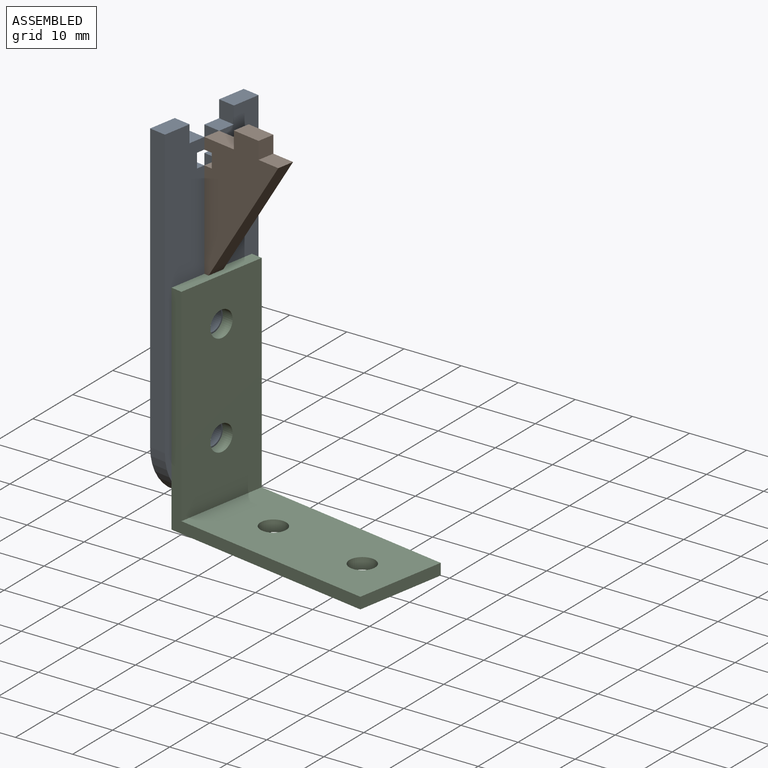
[diagram: assembled view]
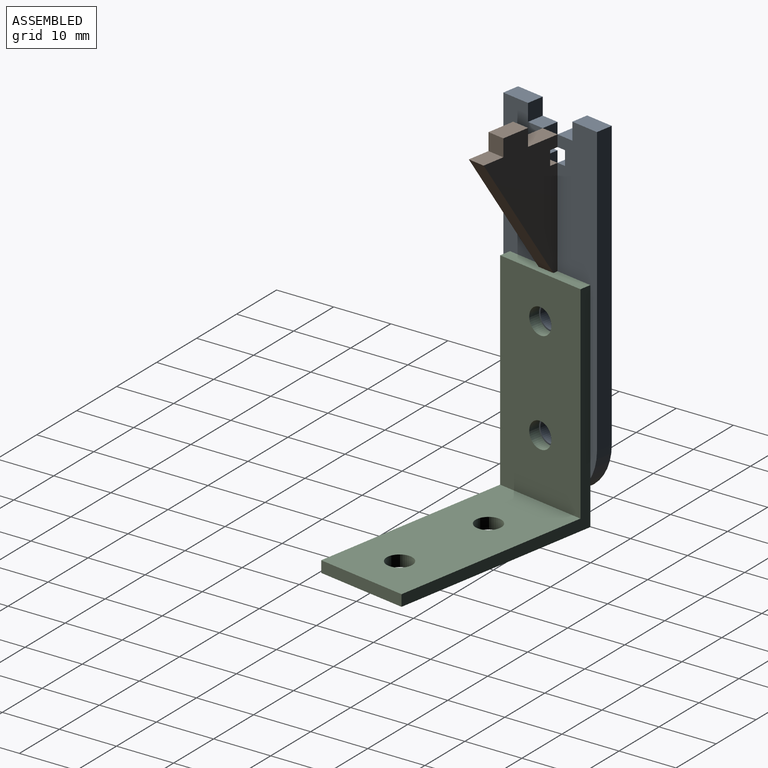
[diagram: assembled view, second angle]
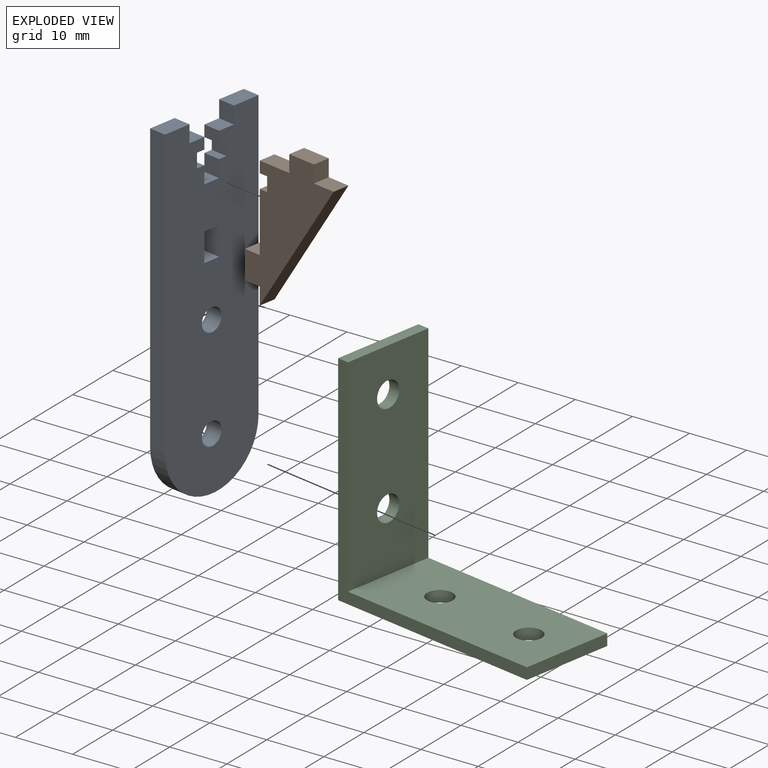
[diagram: exploded view]
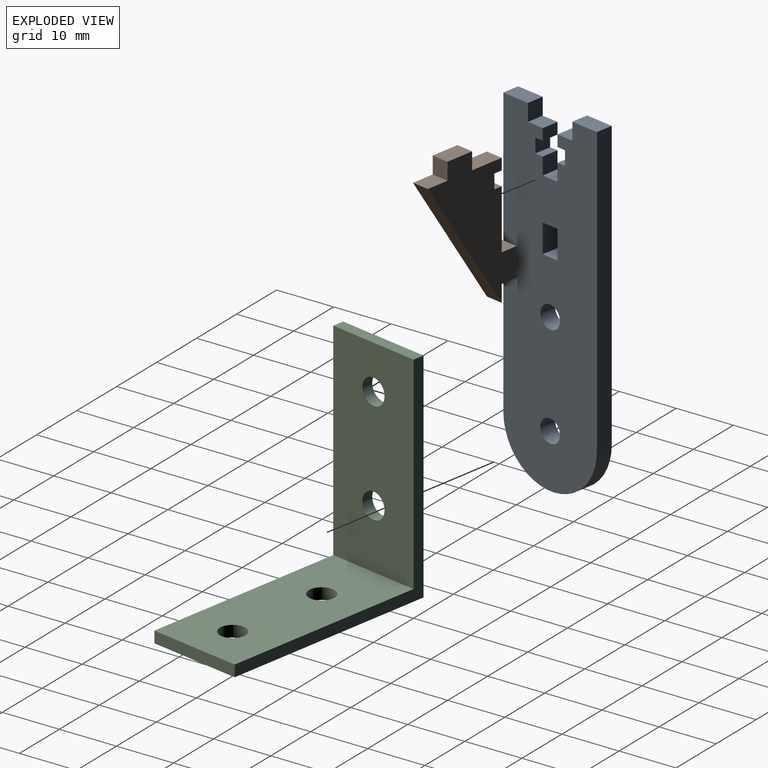
[diagram: exploded view, second angle]
ASSEMBLY  parts=3 mates=2
PART A: 28 faces, bbox 3x19x60 mm
  f0: plane 5x3mm, normal (0,1,0), area 15mm2, adj f1,f23,f26,f27
  f1: plane 3x3mm, normal (0,0,-1), area 9mm2, adj f0,f2,f26,f27
  f2: plane 5x3mm, normal (0,-1,0), area 15mm2, adj f1,f23,f26,f27
  f3: plane 5x3mm, normal (0,0,1), area 15mm2, adj f4,f24,f26,f27
  f4: plane 50.45x3mm, normal (0,-1,0), area 151.3mm2, adj f3,f5,f26,f27
  f5: cylinder r=9.5mm len=19mm, axis (-1,0,0), area 89.5mm2, adj f4,f6,f26,f27
  f6: plane 50.45x3mm, normal (0,1,0), area 151.3mm2, adj f5,f7,f26,f27
  f7: plane 5x3mm, normal (0,0,1), area 15mm2, adj f6,f8,f26,f27
  f8: plane 3x3mm, normal (0,-1,0), area 9mm2, adj f7,f9,f26,f27
  f9: plane 3x3mm, normal (0,0,1), area 9mm2, adj f8,f10,f26,f27
  f10: plane 3x2mm, normal (0,-1,0), area 6mm2, adj f9,f11,f26,f27
  f11: plane 3x1.5mm, normal (0,0,-1), area 4.5mm2, adj f10,f12,f26,f27
  f12: plane 3x2.5mm, normal (0,-1,0), area 7.5mm2, adj f11,f13,f26,f27
  f13: plane 3x1.5mm, normal (0,0,1), area 4.5mm2, adj f12,f14,f26,f27
  f14: plane 3x3mm, normal (0,-1,0), area 9mm2, adj f13,f15,f26,f27
  f15: plane 3x3mm, normal (0,0,1), area 9mm2, adj f14,f16,f26,f27
  f16: plane 3x3mm, normal (0,1,0), area 9mm2, adj f15,f17,f26,f27
  f17: plane 3x1.5mm, normal (0,0,1), area 4.5mm2, adj f16,f18,f26,f27
  f18: plane 3x2.5mm, normal (0,1,0), area 7.5mm2, adj f17,f19,f26,f27
  f19: plane 3x1.5mm, normal (0,0,-1), area 4.5mm2, adj f18,f20,f26,f27
  f20: plane 3x2mm, normal (0,1,0), area 6mm2, adj f19,f21,f26,f27
  f21: plane 3x3mm, normal (0,0,1), area 9mm2, adj f20,f24,f26,f27
  f22: cylinder r=2mm len=4mm, axis (-1,0,0), area 37.7mm2, adj f26,f27
  f23: plane 3x3mm, normal (0,0,1), area 9mm2, adj f0,f2,f26,f27
  f24: plane 3x3mm, normal (0,1,0), area 9mm2, adj f3,f21,f26,f27
  f25: cylinder r=2mm len=4mm, axis (-1,0,0), area 37.7mm2, adj f26,f27
  f26: plane 59.95x19mm, normal (1,0,0), area 1003.2mm2, adj f0,f1,f2,f3,f4,f5,f6,f7
  f27: plane 59.95x19mm, normal (-1,0,0), area 1003.2mm2, adj f0,f1,f2,f3,f4,f5,f6,f7
PART B: 17 faces, bbox 3x18x26 mm
  f0: plane 3x3mm, normal (0,-1,0), area 9mm2, adj f1,f14,f15,f16
  f1: plane 22.96x15mm, normal (0,0.84,-0.55), area 82.3mm2, adj f0,f2,f15,f16
  f2: plane 4x3mm, normal (0,0,1), area 12mm2, adj f1,f3,f15,f16
  f3: plane 3x3mm, normal (0,1,0), area 9mm2, adj f2,f4,f15,f16
  f4: plane 5x3mm, normal (0,0,1), area 15mm2, adj f3,f5,f15,f16
  f5: plane 3x3mm, normal (0,-1,0), area 9mm2, adj f4,f6,f15,f16
  f6: plane 6x3mm, normal (0,0,1), area 18mm2, adj f5,f7,f15,f16
  f7: plane 3x2mm, normal (0,-1,0), area 6mm2, adj f6,f8,f15,f16
  f8: plane 3x1.5mm, normal (0,0,-1), area 4.5mm2, adj f7,f9,f15,f16
  f9: plane 3x2.5mm, normal (0,-1,0), area 7.5mm2, adj f8,f10,f15,f16
  f10: plane 3x1.5mm, normal (0,0,1), area 4.5mm2, adj f9,f11,f15,f16
  f11: plane 10.46x3mm, normal (0,-1,0), area 31.4mm2, adj f10,f12,f15,f16
  f12: plane 3x3mm, normal (0,0,1), area 9mm2, adj f11,f13,f15,f16
  f13: plane 5x3mm, normal (0,-1,0), area 15mm2, adj f12,f14,f15,f16
  f14: plane 3x3mm, normal (0,0,-1), area 9mm2, adj f0,f13,f15,f16
  f15: plane 25.96x18mm, normal (1,0,0), area 198.4mm2, adj f0,f1,f2,f3,f4,f5,f6,f7
  f16: plane 25.96x18mm, normal (-1,0,0), area 198.4mm2, adj f0,f1,f2,f3,f4,f5,f6,f7
PART C: 12 faces, bbox 38.3x16.3x38.3 mm
  f0: plane 36.3x16.3mm, normal (0,0,1), area 559.9mm2, adj f1,f3,f4,f5,f6,f11
  f1: plane 38.3x38.3mm, normal (0,1,0), area 149.2mm2, adj f0,f2,f6,f7,f8,f11
  f2: plane 38.3x16.3mm, normal (-1,0,0), area 592.5mm2, adj f1,f3,f7,f8,f9,f10
  f3: plane 38.3x38.3mm, normal (0,-1,0), area 149.2mm2, adj f0,f2,f6,f7,f8,f11
  f4: cylinder r=2.25mm len=4.5mm, axis (0,0,-1), area 28.3mm2, adj f0,f7
  f5: cylinder r=2.25mm len=4.5mm, axis (0,0,-1), area 28.3mm2, adj f0,f7
  f6: plane 16.3x2mm, normal (1,0,0), area 32.6mm2, adj f0,f1,f3,f7
  f7: plane 38.3x16.3mm, normal (0,0,-1), area 592.5mm2, adj f1,f2,f3,f4,f5,f6
  f8: plane 16.3x2mm, normal (0,0,1), area 32.6mm2, adj f1,f2,f3,f11
  f9: cylinder r=2.25mm len=4.5mm, axis (-1,0,0), area 28.3mm2, adj f2,f11
  f10: cylinder r=2.25mm len=4.5mm, axis (-1,0,0), area 28.3mm2, adj f2,f11
  f11: plane 36.3x16.3mm, normal (1,0,0), area 559.9mm2, adj f0,f1,f3,f8,f9,f10
PLACE A rot(axis=(0,0,-1),10deg) t=(-23.97,23.4,-5.39)mm
PLACE B rot(axis=(0,0,-1),100deg) t=(-21.18,-23.39,-19.35)mm
PLACE C rot(axis=(0,0,-1),10deg) t=(13.51,-75.13,-52.58)mm
MATE fastened B.f13 <-> A.f27  axis (-0.98,0.17,0) through (-32.41,-24.46,-7.57)mm
MATE fastened C.f9 <-> A.f25  axis (-0.98,0.17,0) through (-29.2,-23.5,-22.03)mm
